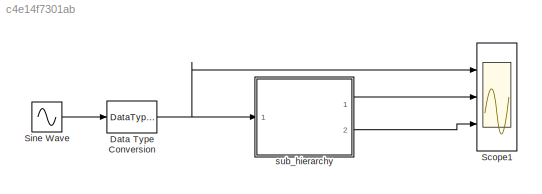
MODEL slx_c4e14f7301ab
KIND model
CONFIG AbsTol = auto
CONFIG FixedStep = auto
CONFIG MaxStep = auto
CONFIG MinStep = auto
CONFIG RelTol = 1e-3
CONFIG SampleTimeConstraint = Unconstrained
CONFIG Solver = FixedStepDiscrete
CONFIG SolverMode = SingleTasking
CONFIG SolverName = FixedStepDiscrete
CONFIG StartTime = 0.0
CONFIG StopTime = 1/10
BLOCK [DataTypeConversion] Data Type Conversion
  OutDataTypeStr = fixdt(1,16,12)
  RndMeth = Floor
  SaturateOnIntegerOverflow = off
BLOCK [Scope] Scope1
  NumInputPorts = 3
  Ports = [3]
  ScopeSpecificationString = Simulink.scopes.TimeScopeBlockCfg('CurrentConfiguration', extmgr.ConfigurationSet(extmgr.Configuration('Core','General UI',true),extmgr.Configuration('Core','Source UI',true),extmgr.Configuration('Sources','WiredSimulink',true,'DataLoggingSaveFormat','StructureWithTime','DataLoggingDecimation','1','DataLoggingDecimateData',true),extmgr.Configuration('Visuals','Time Domain',true,'SerializedDisplays...<+3088ch>
BLOCK [Sin] Sine Wave
  Amplitude = 4
  Bias = 0.2
  Frequency = 2*pi*20
  Ports = [0, 1]
  SampleTime = 1/100
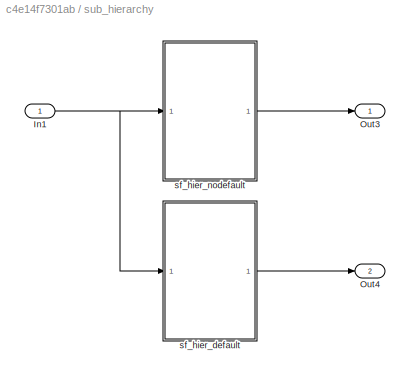
BLOCK [SubSystem] sub_hierarchy
  Ports = [1, 2]
  RequestExecContextInheritance = off
  Variant = off
BLOCK [Inport] sub_hierarchy/In1
  IconDisplay = Port number
BLOCK [Outport] sub_hierarchy/Out3
  IconDisplay = Port number
BLOCK [Outport] sub_hierarchy/Out4
  IconDisplay = Port number
  Port = 2
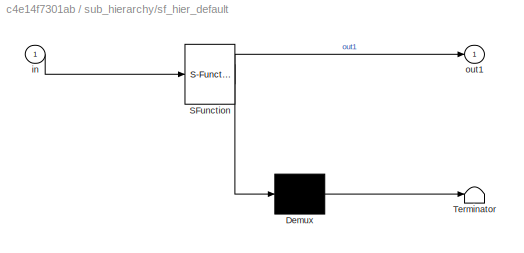
BLOCK [SubSystem] sub_hierarchy/sf_hier_default
  ErrorFcn = Stateflow.Translate.translate
  PermitHierarchicalResolution = ExplicitOnly
  Ports = [1, 1]
  RequestExecContextInheritance = off
  SFBlockType = Chart
  TreatAsAtomicUnit = on
  Variant = off
BLOCK [Demux] sub_hierarchy/sf_hier_default/ Demux 
  Outputs = 1
  Ports = [1, 1]
BLOCK [S-Function] sub_hierarchy/sf_hier_default/ SFunction 
  EnableBusSupport = on
  FunctionName = sf_sfun
  PortCounts = [1 2]
  Ports = [1, 2]
  SFunctionDeploymentMode = off
  Tag = Stateflow S-Function sf_hierarchy 2
BLOCK [Terminator] sub_hierarchy/sf_hier_default/ Terminator 
BLOCK [Inport] sub_hierarchy/sf_hier_default/in
  IconDisplay = Port number
BLOCK [Outport] sub_hierarchy/sf_hier_default/out1
  IconDisplay = Port number
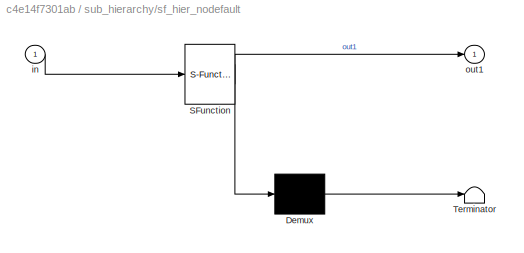
BLOCK [SubSystem] sub_hierarchy/sf_hier_nodefault
  ErrorFcn = Stateflow.Translate.translate
  PermitHierarchicalResolution = ExplicitOnly
  Ports = [1, 1]
  RequestExecContextInheritance = off
  SFBlockType = Chart
  TreatAsAtomicUnit = on
  Variant = off
BLOCK [Demux] sub_hierarchy/sf_hier_nodefault/ Demux 
  Outputs = 1
  Ports = [1, 1]
BLOCK [S-Function] sub_hierarchy/sf_hier_nodefault/ SFunction 
  EnableBusSupport = on
  FunctionName = sf_sfun
  PortCounts = [1 2]
  Ports = [1, 2]
  SFunctionDeploymentMode = off
  Tag = Stateflow S-Function sf_hierarchy 4
BLOCK [Terminator] sub_hierarchy/sf_hier_nodefault/ Terminator 
BLOCK [Inport] sub_hierarchy/sf_hier_nodefault/in
  IconDisplay = Port number
BLOCK [Outport] sub_hierarchy/sf_hier_nodefault/out1
  IconDisplay = Port number
NET Data Type Conversion:1 -> Scope1:1, sub_hierarchy:1
LINE Sine Wave:1 -> Data Type Conversion:1
NET sub_hierarchy/In1:1 -> sub_hierarchy/sf_hier_default:1, sub_hierarchy/sf_hier_nodefault:1
LINE sub_hierarchy/sf_hier_default:1 -> sub_hierarchy/Out4:1
LINE sub_hierarchy/sf_hier_nodefault:1 -> sub_hierarchy/Out3:1
LINE sub_hierarchy:1 -> Scope1:2
LINE sub_hierarchy:2 -> Scope1:3
note: NET lines group one-source signal fan-out (src -> all destinations, sorted); 1:1 wires keep LINE
CHART sub_hierarchy/sf_hier_default states=4 transitions=11
  STATE_LABEL 'Init/\nout1 = 2;'
  STATE_LABEL 'On_Parent'
  STATE_LABEL 'On1/\nout1 = 1;'
  STATE_LABEL 'On2/\nout1 = 0;'
  STATE_LABEL '[in < 0]'
  STATE_LABEL '[in >= 0]'
  STATE_LABEL 'On1/\nout1 = 1;'
  STATE_LABEL 'On2/\nout1 = 0;'
CHART sub_hierarchy/sf_hier_nodefault states=4 transitions=10
  STATE_LABEL 'Init/\nout1 = 2;'
  STATE_LABEL 'On_Parent'
  STATE_LABEL 'On1/\nout1 = 1;'
  STATE_LABEL 'On2/\nout1 = 0;'
  STATE_LABEL '[in < 0]'
  STATE_LABEL '[in >= 0]'
  STATE_LABEL 'On1/\nout1 = 1;'
  STATE_LABEL 'On2/\nout1 = 0;'
